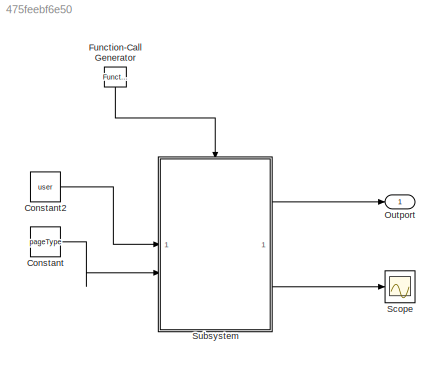
MODEL slx_475feebf6e50
KIND model
CONFIG AbsTol = auto
CONFIG EnableMultiTasking = on
CONFIG FixedStep = 0.1
CONFIG MaxStep = auto
CONFIG MinStep = auto
CONFIG RelTol = 1e-3
CONFIG SampleTimeConstraint = Unconstrained
CONFIG SolverName = FixedStepDiscrete
CONFIG StartTime = 0.0
CONFIG StopTime = 10.0
BLOCK [Constant] Constant
  Value = pageType
BLOCK [Constant] Constant2
  Value = user
BLOCK [Reference] Function-Call Generator  REF=simulink/Ports &
Subsystems/Function-Call
Generator
  NameLocation = left
  SourceBlock = simulink/Ports &\nSubsystems/Function-Call\nGenerator
  SourceType = Function-Call Generator
BLOCK [Outport] Outport
BLOCK [Scope] Scope
  Floating = off
  NumInputPorts = 1
  ScopeSpecificationString = Simulink.scopes.TimeScopeBlockCfg('CurrentConfiguration', extmgr.ConfigurationSet(extmgr.Configuration('Core','General UI',true),extmgr.Configuration('Core','Source UI',true),extmgr.Configuration('Sources','WiredSimulink',true,'DataLoggingLimitDataPoints',true,'DataLoggingSaveFormat','Array','DataLoggingDecimation','1','DataLoggingDecimateData',true),extmgr.Configuration('Visuals','Time Domain',tr...<+126ch>
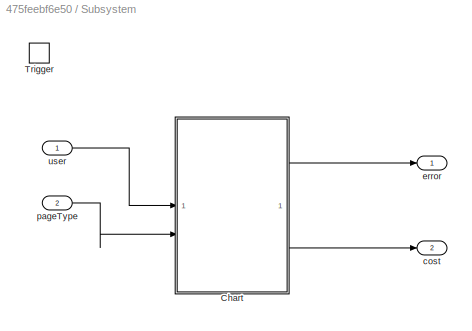
BLOCK [SubSystem] Subsystem
  MinAlgLoopOccurrences = on
  SystemSampleTime = 1
  TreatAsAtomicUnit = on
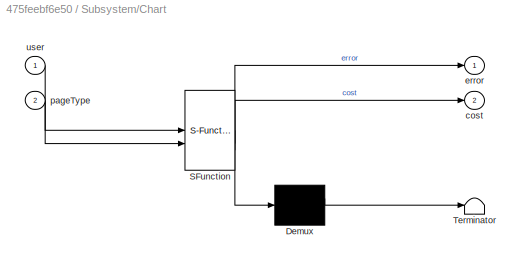
BLOCK [SubSystem] Subsystem/Chart
  ErrorFcn = Stateflow.Translate.translate
  PermitHierarchicalResolution = ExplicitOnly
  SFBlockType = Chart
  TreatAsAtomicUnit = on
BLOCK [Demux] Subsystem/Chart/ Demux 
  Outputs = 1
BLOCK [S-Function] Subsystem/Chart/ SFunction 
  EnableBusSupport = on
  FunctionName = sf_sfun
  PortCounts = [2 3]
  SFcnIsStateOwnerBlock = off
  SFunctionDeploymentMode = off
  Tag = Stateflow S-Function 3
BLOCK [Terminator] Subsystem/Chart/ Terminator 
BLOCK [Outport] Subsystem/Chart/cost
  Port = 2
BLOCK [Outport] Subsystem/Chart/error
BLOCK [Inport] Subsystem/Chart/pageType
  Port = 2
BLOCK [Inport] Subsystem/Chart/user
BLOCK [TriggerPort] Subsystem/Trigger
  PortDimensions = 1
  StatesWhenEnabling = held
  TriggerType = function-call
  VariantControl = (inherit)
BLOCK [Outport] Subsystem/cost
  Port = 2
BLOCK [Outport] Subsystem/error
BLOCK [Inport] Subsystem/pageType
  Port = 2
BLOCK [Inport] Subsystem/user
LINE Constant2:1 -> Subsystem:1
LINE Constant:1 -> Subsystem:2
LINE Function-Call Generator:1 -> Subsystem:trigger
LINE Subsystem/Chart:1 -> Subsystem/error:1
LINE Subsystem/Chart:2 -> Subsystem/cost:1
LINE Subsystem/pageType:1 -> Subsystem/Chart:2
LINE Subsystem/user:1 -> Subsystem/Chart:1
LINE Subsystem:1 -> Outport:1
LINE Subsystem:2 -> Scope:1
CHART Subsystem/Chart states=19 transitions=31
  STATE_LABEL 'initialState\nentry: user == false;'
  STATE_LABEL 'sessionBegin \n'
  STATE_LABEL 'cancelSession\n\n'
  STATE_LABEL 'uploadDocuments\n'
  STATE_LABEL 'choosePageType\n\n'
  STATE_LABEL 'choosenType1\nrate = 1.5;'
  STATE_LABEL 'choosenTypeNull\nrate = 0;'
  STATE_LABEL 'choosenType2\nrate = 2;'
  STATE_LABEL 'choosenType3\nrate = 3;'
  STATE_LABEL 'copies\ncopiesPrint = numCopies;\n'
  STATE_LABEL 'colourPrint\ncost = rate*numCopies*2;'
  STATE_LABEL 'blackAndWhite\ncost = rate*numCopies*1;'
  STATE_LABEL 'displayQR\ndisplay == true;'
  STATE_LABEL 'paymentTrue\n\nprintStart = true;\n'
  STATE_LABEL 'paymentFalse\n\nprintStart = false;'
  STATE_LABEL 'printDone\n\n'
  STATE_LABEL 'noPrinting\n\nerror = 1;'
  STATE_LABEL 'errorCatch\nerror = 0;\n'
  STATE_LABEL 'refunding\nstart : error == 0\nrefund = true;'
CHART  states=0 transitions=0
